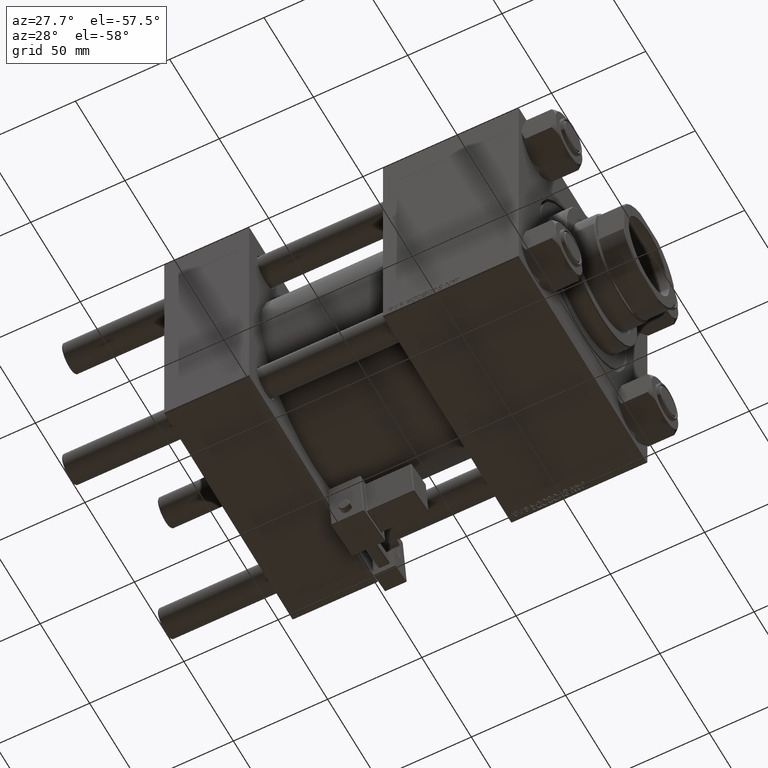
[diagram: clean part render]
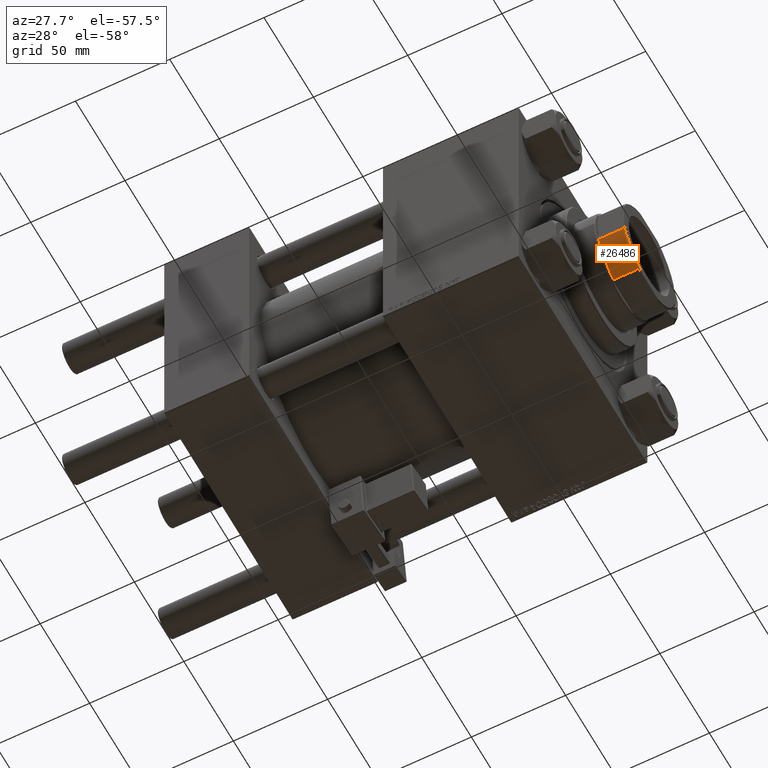
[diagram: same view with one face highlighted and labeled with its STEP entity id]
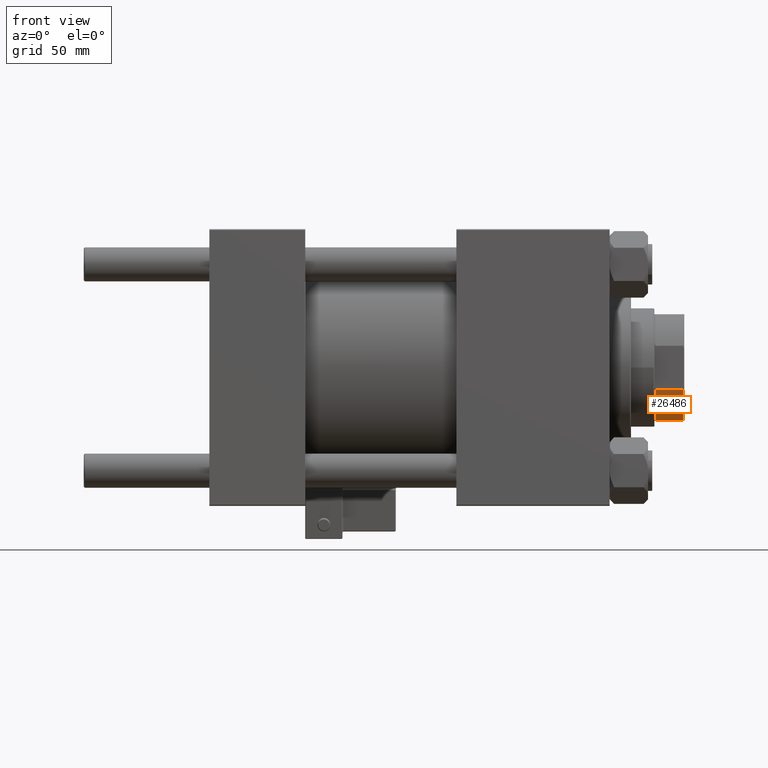
[diagram: same view with one face highlighted and labeled with its STEP entity id]
A machine part, auxiliary view. The second image highlights one B-rep face of the part: STEP entity #26486.
A second angle (front view) of the same face is appended — the face is thin or edge-on in the first view.
In plain terms, the highlighted cylindrical surface (partial cylindrical patch) has radius 27 mm, axis along (1, 0, -0).
Its self-contained STEP definition (entity closure, byte-faithful):
#1324 = DIRECTION ( 'NONE',  ( 1.000000000000000000, 0.000000000000000000, 0.000000000000000000 ) ) ;
#2204 = CARTESIAN_POINT ( 'NONE',  ( 10.19803902718555655, 24.99999999999999645, -0.001000000000001000089 ) ) ;
#4373 = AXIS2_PLACEMENT_3D ( 'NONE', #50255, #42862, #13922 ) ;
#5593 = EDGE_CURVE ( 'NONE', #26787, #26201, #26884, .T. ) ;
#8894 = EDGE_CURVE ( 'NONE', #29969, #26787, #44078, .T. ) ;
#8981 = CARTESIAN_POINT ( 'NONE',  ( 0.000000000000000000, 0.000000000000000000, 164.5000000000000000 ) ) ;
#9550 = DIRECTION ( 'NONE',  ( -0.000000000000000000, -0.000000000000000000, 1.000000000000000000 ) ) ;
#9887 = ORIENTED_EDGE ( 'NONE', *, *, #11734, .T. ) ;
#11005 = AXIS2_PLACEMENT_3D ( 'NONE', #18307, #9550, #1324 ) ;
#11734 = EDGE_CURVE ( 'NONE', #26201, #45057, #14532, .T. ) ;
#12356 = CARTESIAN_POINT ( 'NONE',  ( 25.00000000000000000, 10.19803902718555655, 164.5000000000000000 ) ) ;
#13922 = DIRECTION ( 'NONE',  ( 1.000000000000000000, 0.000000000000000000, 0.000000000000000000 ) ) ;
#14532 = CIRCLE ( 'NONE', #4373, 26.99999999999999645 ) ;
#16262 = VECTOR ( 'NONE', #52030, 1000.000000000000000 ) ;
#16968 = DIRECTION ( 'NONE',  ( -0.000000000000000000, -0.000000000000000000, 1.000000000000000000 ) ) ;
#18307 = CARTESIAN_POINT ( 'NONE',  ( 0.000000000000000000, 0.000000000000000000, -0.001000000000001000089 ) ) ;
#22907 = AXIS2_PLACEMENT_3D ( 'NONE', #8981, #16968, #33146 ) ;
#24190 = CARTESIAN_POINT ( 'NONE',  ( 10.19803902718555655, 24.99999999999999645, 177.5000000000000284 ) ) ;
#24949 = ORIENTED_EDGE ( 'NONE', *, *, #35398, .F. ) ;
#25152 = LINE ( 'NONE', #37364, #16262 ) ;
#26201 = VERTEX_POINT ( 'NONE', #24190 ) ;
#26486 = ADVANCED_FACE ( 'NONE', ( #46703 ), #26540, .T. ) ;
#26540 = CYLINDRICAL_SURFACE ( 'NONE', #11005, 26.99999999999999645 ) ;
#26787 = VERTEX_POINT ( 'NONE', #43140 ) ;
#26884 = LINE ( 'NONE', #2204, #52410 ) ;
#28129 = ORIENTED_EDGE ( 'NONE', *, *, #8894, .T. ) ;
#29969 = VERTEX_POINT ( 'NONE', #12356 ) ;
#32631 = EDGE_LOOP ( 'NONE', ( #50355, #9887, #24949, #28129 ) ) ;
#33140 = CARTESIAN_POINT ( 'NONE',  ( 25.00000000000000000, 10.19803902718555655, 177.5000000000000284 ) ) ;
#33146 = DIRECTION ( 'NONE',  ( -1.000000000000000000, 0.000000000000000000, 0.000000000000000000 ) ) ;
#35398 = EDGE_CURVE ( 'NONE', #29969, #45057, #25152, .T. ) ;
#37364 = CARTESIAN_POINT ( 'NONE',  ( 25.00000000000000000, 10.19803902718555655, -0.001000000000001000089 ) ) ;
#42862 = DIRECTION ( 'NONE',  ( -0.000000000000000000, -0.000000000000000000, -1.000000000000000000 ) ) ;
#43140 = CARTESIAN_POINT ( 'NONE',  ( 10.19803902718555833, 25.00000000000000355, 164.5000000000000000 ) ) ;
#43345 = DIRECTION ( 'NONE',  ( -0.000000000000000000, -0.000000000000000000, 1.000000000000000000 ) ) ;
#44078 = CIRCLE ( 'NONE', #22907, 26.99999999999999645 ) ;
#45057 = VERTEX_POINT ( 'NONE', #33140 ) ;
#46703 = FACE_OUTER_BOUND ( 'NONE', #32631, .T. ) ;
#50255 = CARTESIAN_POINT ( 'NONE',  ( 0.000000000000000000, 0.000000000000000000, 177.5000000000000284 ) ) ;
#50355 = ORIENTED_EDGE ( 'NONE', *, *, #5593, .T. ) ;
#52030 = DIRECTION ( 'NONE',  ( -0.000000000000000000, -0.000000000000000000, 1.000000000000000000 ) ) ;
#52410 = VECTOR ( 'NONE', #43345, 1000.000000000000000 ) ;